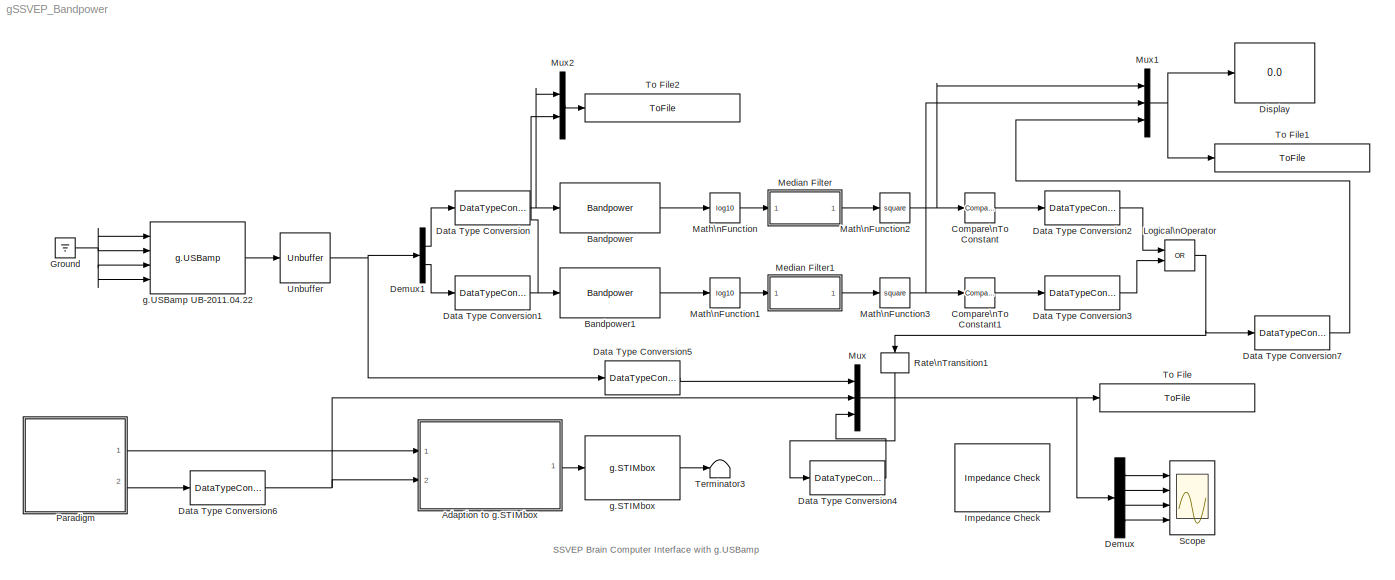
MODEL gSSVEP_Bandpower
KIND model
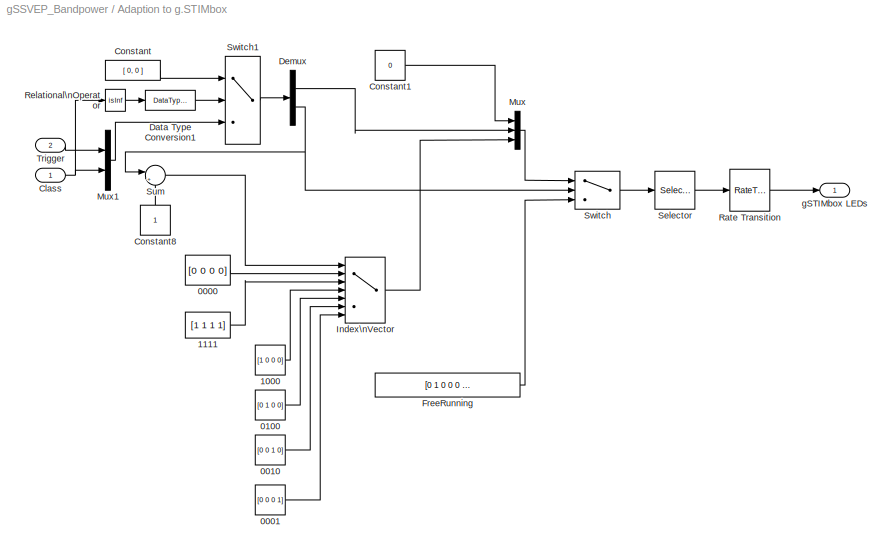
BLOCK [SubSystem] Adaption to g.STIMbox
  MinAlgLoopOccurrences = on
  Ports = [2, 1]
  RequestExecContextInheritance = off
  SID = 1
  Variant = off
BLOCK [Constant] Adaption to g.STIMbox/0000
  SID = 4
  SampleTime = 1/256
  Value = [0 0 0 0]
BLOCK [Constant] Adaption to g.STIMbox/0001
  SID = 5
  SampleTime = 1/256
  Value = [0 0 0 1]
BLOCK [Constant] Adaption to g.STIMbox/0010
  SID = 6
  SampleTime = 1/256
  Value = [0 0 1 0]
BLOCK [Constant] Adaption to g.STIMbox/0100
  SID = 7
  SampleTime = 1/256
  Value = [0 1 0 0]
BLOCK [Constant] Adaption to g.STIMbox/1000
  SID = 8
  SampleTime = 1/256
  Value = [1 0 0 0]
BLOCK [Constant] Adaption to g.STIMbox/1111
  SID = 9
  SampleTime = 1/256
  Value = [1 1 1 1]
BLOCK [Inport] Adaption to g.STIMbox/Class
  IconDisplay = Port number
  SID = 2
BLOCK [Constant] Adaption to g.STIMbox/Constant
  SID = 73
  Value = [ 0, 0 ]
BLOCK [Constant] Adaption to g.STIMbox/Constant1
  SID = 10
  SampleTime = 1/256
  Value = 0
BLOCK [Constant] Adaption to g.STIMbox/Constant8
  SID = 11
  SampleTime = 1/256
BLOCK [DataTypeConversion] Adaption to g.STIMbox/Data Type Conversion1
  RndMeth = Floor
  SID = 74
  SaturateOnIntegerOverflow = off
BLOCK [Demux] Adaption to g.STIMbox/Demux
  DisplayOption = bar
  Outputs = 2
  Ports = [1, 2]
  SID = 78
BLOCK [Constant] Adaption to g.STIMbox/FreeRunning
  SID = 12
  SampleTime = 1/256
  Value = [0 1 0 0 0 0]
BLOCK [MultiPortSwitch] Adaption to g.STIMbox/Index\nVector
  DataPortOrder = Zero-based contiguous
  InputSameDT = off
  Inputs = 6
  Ports = [7, 1]
  SID = 13
  SaturateOnIntegerOverflow = off
  zeroidx = on
BLOCK [Mux] Adaption to g.STIMbox/Mux
  DisplayOption = bar
  Inputs = 3
  Ports = [3, 1]
  SID = 14
BLOCK [Mux] Adaption to g.STIMbox/Mux1
  DisplayOption = bar
  Inputs = 2
  Ports = [2, 1]
  SID = 77
BLOCK [RateTransition] Adaption to g.STIMbox/Rate Transition
  SID = 15
BLOCK [RelationalOperator] Adaption to g.STIMbox/Relational\nOperator
  InputSameDT = off
  Operator = isInf
  OutDataTypeStr = boolean
  Ports = [1, 1]
  SID = 75
BLOCK [Selector] Adaption to g.STIMbox/Selector
  IndexOptions = Index vector (dialog)
  Indices = [ones(1,8) 2 3 2 4 2 5 2 6]
  InputPortWidth = 6
  OutputSizes = 1
  Ports = [1, 1]
  SID = 16
BLOCK [Sum] Adaption to g.STIMbox/Sum
  IconShape = round
  InputSameDT = off
  Inputs = |++
  OutDataTypeStr = Inherit: Inherit via internal rule
  Ports = [2, 1]
  SID = 17
  SaturateOnIntegerOverflow = off
BLOCK [Switch] Adaption to g.STIMbox/Switch
  InputSameDT = off
  SID = 18
  SaturateOnIntegerOverflow = off
BLOCK [Switch] Adaption to g.STIMbox/Switch1
  Criteria = u2 > Threshold
  InputSameDT = off
  SID = 76
  SaturateOnIntegerOverflow = off
BLOCK [Inport] Adaption to g.STIMbox/Trigger
  IconDisplay = Port number
  Port = 2
  SID = 3
BLOCK [Outport] Adaption to g.STIMbox/gSTIMbox LEDs
  IconDisplay = Port number
  SID = 19
BLOCK [Reference] Bandpower  REF=gRTanalyze/Bandpower
  LowerFreq = 8
  Order = 5
  Ports = [1, 1]
  SID = 90
  SourceBlock = gRTanalyze/Bandpower
  SourceType = Parameter Extraction: Bandpower
  UpperFreq = 10
  WindowLength = 128
BLOCK [Reference] Bandpower1  REF=gRTanalyze/Bandpower
  LowerFreq = 8
  Order = 5
  Ports = [1, 1]
  SID = 91
  SourceBlock = gRTanalyze/Bandpower
  SourceType = Parameter Extraction: Bandpower
  UpperFreq = 10
  WindowLength = 128
BLOCK [Reference] Compare\nTo Constant  REF=simulink/Logic and Bit\nOperations/Compare\nTo Constant
  OutDataTypeStr = boolean
  Ports = [1, 1]
  SID = 102
  SourceBlock = simulink/Logic and Bit\nOperations/Compare\nTo Constant
  SourceType = Compare To Constant
  ZeroCross = on
  const = 3
  relop = >=
BLOCK [Reference] Compare\nTo Constant1  REF=simulink/Logic and Bit\nOperations/Compare\nTo Constant
  OutDataTypeStr = boolean
  Ports = [1, 1]
  SID = 103
  SourceBlock = simulink/Logic and Bit\nOperations/Compare\nTo Constant
  SourceType = Compare To Constant
  ZeroCross = on
  const = 3
  relop = >=
BLOCK [DataTypeConversion] Data Type Conversion
  OutDataTypeStr = double
  RndMeth = Floor
  SID = 88
  SaturateOnIntegerOverflow = off
BLOCK [DataTypeConversion] Data Type Conversion1
  OutDataTypeStr = double
  RndMeth = Floor
  SID = 89
  SaturateOnIntegerOverflow = off
BLOCK [DataTypeConversion] Data Type Conversion2
  OutDataTypeStr = double
  RndMeth = Floor
  SID = 104
  SaturateOnIntegerOverflow = off
BLOCK [DataTypeConversion] Data Type Conversion3
  OutDataTypeStr = double
  RndMeth = Floor
  SID = 105
  SaturateOnIntegerOverflow = off
BLOCK [DataTypeConversion] Data Type Conversion4
  OutDataTypeStr = double
  RndMeth = Floor
  SID = 110
  SaturateOnIntegerOverflow = off
BLOCK [DataTypeConversion] Data Type Conversion5
  OutDataTypeStr = double
  RndMeth = Floor
  SID = 111
  SaturateOnIntegerOverflow = off
BLOCK [DataTypeConversion] Data Type Conversion6
  OutDataTypeStr = double
  RndMeth = Floor
  SID = 112
  SaturateOnIntegerOverflow = off
BLOCK [DataTypeConversion] Data Type Conversion7
  OutDataTypeStr = double
  RndMeth = Floor
  SID = 113
  SaturateOnIntegerOverflow = off
BLOCK [Demux] Demux
  DisplayOption = bar
  Ports = [1, 4]
  SID = 22
BLOCK [Demux] Demux1
  DisplayOption = bar
  Outputs = 2
  Ports = [1, 2]
  SID = 86
BLOCK [Display] Display
  Decimation = 1
  Ports = [1]
  SID = 23
BLOCK [Ground] Ground
  SID = 84
BLOCK [Reference] Impedance Check  REF=Tools/Impedance Check
  Ports = []
  SID = 26
  SourceBlock = Tools/Impedance Check
  SourceType = g.USBamp Impedance Check
BLOCK [Logic] Logical\nOperator
  AllPortsSameDT = off
  Operator = OR
  OutDataTypeStr = boolean
  Ports = [2, 1]
  SID = 106
BLOCK [Math] Math\nFunction
  Operator = log10
  Ports = [1, 1]
  SID = 98
BLOCK [Math] Math\nFunction1
  Operator = log10
  Ports = [1, 1]
  SID = 99
BLOCK [Math] Math\nFunction2
  Operator = square
  Ports = [1, 1]
  SID = 100
BLOCK [Math] Math\nFunction3
  Operator = square
  Ports = [1, 1]
  SID = 101
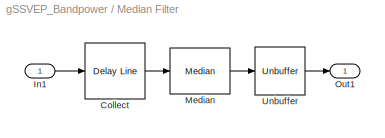
BLOCK [SubSystem] Median Filter
  Ports = [1, 1]
  RequestExecContextInheritance = off
  SID = 55
  Variant = off
BLOCK [Reference] Median Filter/Collect  REF=dspbuff3/Delay Line
  OutputFrames = on
  Ports = [1, 1]
  SID = 57
  SourceBlock = dspbuff3/Delay Line
  SourceType = Delay Line
  TreatMby1Signals = M channels (this choice will be removed - see release notes)
  UserData = DataTag0
  UserDataPersistent = on
  directfeed = on
  enable_output = off
  hold_output = off
  ic = 0
  siz = 50
BLOCK [Inport] Median Filter/In1
  IconDisplay = Port number
  SID = 56
BLOCK [Reference] Median Filter/Median  REF=dspstat3/Median
  LockScale = off
  Ports = [1, 1]
  SID = 58
  SourceBlock = dspstat3/Median
  SourceType = Median
  accumDataTypeStr = Inherit: Same as product output
  accumFracLength = 30
  accumLastDataTypeStr = Inherit: Same as product output
  accumMode = Same as product output
  accumWordLength = 32
  additionalParams = off
  allowOverrides = off
  dimension = 1
  directionMode = Specified dimension
  outputDataTypeStr = Inherit: Same as accumulator
  outputFracLength = 15
  outputLastDataTypeStr = Inherit: Same as accumulator
  outputMax = []
  outputMin = []
  outputMode = Same as accumulator
  outputWordLength = 16
  overflowMode = off
  prodOutputDataTypeStr = Inherit: Same as input
  prodOutputFracLength = 30
  prodOutputLastDataTypeStr = Inherit: Same as input
  prodOutputMode = Same as input
  prodOutputWordLength = 32
  roundingMode = Floor
  sortAlg = Quick sort
BLOCK [Outport] Median Filter/Out1
  IconDisplay = Port number
  SID = 60
BLOCK [Unbuffer] Median Filter/Unbuffer
  Ports = [1, 1]
  SID = 64
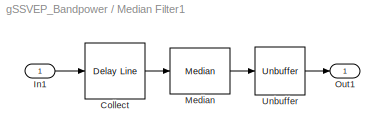
BLOCK [SubSystem] Median Filter1
  Ports = [1, 1]
  RequestExecContextInheritance = off
  SID = 114
  Variant = off
BLOCK [Reference] Median Filter1/Collect  REF=dspbuff3/Delay Line
  OutputFrames = on
  Ports = [1, 1]
  SID = 116
  SourceBlock = dspbuff3/Delay Line
  SourceType = Delay Line
  TreatMby1Signals = M channels (this choice will be removed - see release notes)
  UserData = DataTag1
  UserDataPersistent = on
  directfeed = on
  enable_output = off
  hold_output = off
  ic = 0
  siz = 50
BLOCK [Inport] Median Filter1/In1
  IconDisplay = Port number
  SID = 115
BLOCK [Reference] Median Filter1/Median  REF=dspstat3/Median
  LockScale = off
  Ports = [1, 1]
  SID = 117
  SourceBlock = dspstat3/Median
  SourceType = Median
  accumDataTypeStr = Inherit: Same as product output
  accumFracLength = 30
  accumLastDataTypeStr = Inherit: Same as product output
  accumMode = Same as product output
  accumWordLength = 32
  additionalParams = off
  allowOverrides = off
  dimension = 1
  directionMode = Specified dimension
  outputDataTypeStr = Inherit: Same as accumulator
  outputFracLength = 15
  outputLastDataTypeStr = Inherit: Same as accumulator
  outputMax = []
  outputMin = []
  outputMode = Same as accumulator
  outputWordLength = 16
  overflowMode = off
  prodOutputDataTypeStr = Inherit: Same as input
  prodOutputFracLength = 30
  prodOutputLastDataTypeStr = Inherit: Same as input
  prodOutputMode = Same as input
  prodOutputWordLength = 32
  roundingMode = Floor
  sortAlg = Quick sort
BLOCK [Outport] Median Filter1/Out1
  IconDisplay = Port number
  SID = 119
BLOCK [Unbuffer] Median Filter1/Unbuffer
  Ports = [1, 1]
  SID = 118
BLOCK [Mux] Mux
  DisplayOption = bar
  Inputs = 3
  Ports = [3, 1]
  SID = 34
BLOCK [Mux] Mux1
  DisplayOption = bar
  Inputs = 3
  Ports = [3, 1]
  SID = 108
BLOCK [Mux] Mux2
  DisplayOption = bar
  Inputs = 2
  Ports = [2, 1]
  SID = 122
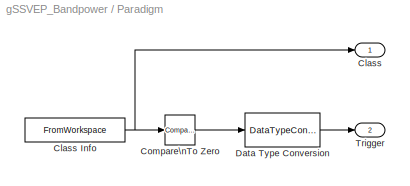
BLOCK [SubSystem] Paradigm
  MinAlgLoopOccurrences = on
  Ports = [0, 2]
  RequestExecContextInheritance = off
  SID = 35
  Variant = off
BLOCK [Outport] Paradigm/Class
  IconDisplay = Port number
  InitialOutput = 0
  SID = 39
BLOCK [FromWorkspace] Paradigm/Class Info
  Interpolate = off
  OutputAfterFinalValue = Holding final value
  SID = 36
  SampleTime = 1/256
  VariableName = paradigmDrivePattern
  ZeroCross = on
BLOCK [Reference] Paradigm/Compare\nTo Zero  REF=simulink/Logic and Bit\nOperations/Compare\nTo Zero
  OutDataTypeStr = uint8
  Ports = [1, 1]
  SID = 37
  SourceBlock = simulink/Logic and Bit\nOperations/Compare\nTo Zero
  SourceType = Compare To Zero
  ZeroCross = off
  relop = >
BLOCK [DataTypeConversion] Paradigm/Data Type Conversion
  RndMeth = Floor
  SID = 38
  SaturateOnIntegerOverflow = off
BLOCK [Outport] Paradigm/Trigger
  IconDisplay = Port number
  InitialOutput = 0
  Port = 2
  SID = 40
BLOCK [RateTransition] Rate\nTransition1
  SID = 41
BLOCK [Scope] Scope
  NumInputPorts = 4
  Ports = [4]
  SID = 42
  ScopeSpecificationString = Simulink.scopes.TimeScopeBlockCfg('CurrentConfiguration', extmgr.ConfigurationSet(extmgr.Configuration('Core','General UI',true),extmgr.Configuration('Core','Source UI',true),extmgr.Configuration('Sources','WiredSimulink',true,'DataLoggingSaveFormat','StructureWithTime','DataLoggingLimitDataPoints',true,'DataLoggingDecimation','1','DataLoggingDecimateData',true),extmgr.Configuration('Visuals','Tim...<+9113ch>
BLOCK [Terminator] Terminator3
  SID = 46
BLOCK [ToFile] To File
  Filename = training_session_2.mat
  MatrixName = y
  Ports = [1]
  SID = 47
BLOCK [ToFile] To File1
  Filename = SSVEP_bandpower.mat
  MatrixName = y
  Ports = [1]
  SID = 107
BLOCK [ToFile] To File2
  Filename = SSVEP_bandpower_rawdata.mat
  MatrixName = y
  Ports = [1]
  SID = 120
BLOCK [Unbuffer] Unbuffer
  Ports = [1, 1]
  SID = 85
  SampleBasedProcessing = Same as frame based
BLOCK [Reference] g.STIMbox  REF=gSTIMboxlib/g.STIMbox
  Ports = [1, 1]
  SID = 53
  SourceBlock = gSTIMboxlib/g.STIMbox
  SourceType = g.STIMbox
  bm = 0
  chfreqs = [1  1  1  1  1  1  1  1  9  1  9  1  9  1  9  1]
  chinv = [0  0  0  0  0  0  0  0  0  0  0  0  0  0]
  chmodes = [0  0  0  0  0  0  0  0  1  0  1  0  1  0  1  0]
  comport = 3
  fl = 1
  fs = 1
  ia = 1
  sr = 32
BLOCK [Reference] g.USBamp UB-2011.04.22  REF=gUSBamplib/g.USBamp
  Ports = [4, 1]
  SID = 109
  SourceBlock = gUSBamplib/g.USBamp
  SourceType = g.USBamp
  cfg = currentCFG_gSSVEP_gUSBamp_8ch_UB-2011.04.22.cfg
  snr = UB-2011.04.22
ANNOTATION (root): SSVEP Brain Computer Interface with g.USBamp
LINE Adaption to g.STIMbox/0000:1 -> Adaption to g.STIMbox/Index\nVector:2
LINE Adaption to g.STIMbox/0001:1 -> Adaption to g.STIMbox/Index\nVector:7
LINE Adaption to g.STIMbox/0010:1 -> Adaption to g.STIMbox/Index\nVector:6
LINE Adaption to g.STIMbox/0100:1 -> Adaption to g.STIMbox/Index\nVector:5
LINE Adaption to g.STIMbox/1000:1 -> Adaption to g.STIMbox/Index\nVector:4
LINE Adaption to g.STIMbox/1111:1 -> Adaption to g.STIMbox/Index\nVector:3
NET Adaption to g.STIMbox/Class:1 -> Adaption to g.STIMbox/Mux1:2, Adaption to g.STIMbox/Relational\nOperator:1
LINE Adaption to g.STIMbox/Constant1:1 -> Adaption to g.STIMbox/Mux:1
LINE Adaption to g.STIMbox/Constant8:1 -> Adaption to g.STIMbox/Sum:2
LINE Adaption to g.STIMbox/Constant:1 -> Adaption to g.STIMbox/Switch1:1
LINE Adaption to g.STIMbox/Data Type Conversion1:1 -> Adaption to g.STIMbox/Switch1:2
LINE Adaption to g.STIMbox/Demux:1 -> Adaption to g.STIMbox/Mux:2
NET Adaption to g.STIMbox/Demux:2 -> Adaption to g.STIMbox/Sum:1, Adaption to g.STIMbox/Switch:2
LINE Adaption to g.STIMbox/FreeRunning:1 -> Adaption to g.STIMbox/Switch:3
LINE Adaption to g.STIMbox/Index\nVector:1 -> Adaption to g.STIMbox/Mux:3
LINE Adaption to g.STIMbox/Mux1:1 -> Adaption to g.STIMbox/Switch1:3
LINE Adaption to g.STIMbox/Mux:1 -> Adaption to g.STIMbox/Switch:1
LINE Adaption to g.STIMbox/Rate Transition:1 -> Adaption to g.STIMbox/gSTIMbox LEDs:1
LINE Adaption to g.STIMbox/Relational\nOperator:1 -> Adaption to g.STIMbox/Data Type Conversion1:1
LINE Adaption to g.STIMbox/Selector:1 -> Adaption to g.STIMbox/Rate Transition:1
LINE Adaption to g.STIMbox/Sum:1 -> Adaption to g.STIMbox/Index\nVector:1
LINE Adaption to g.STIMbox/Switch1:1 -> Adaption to g.STIMbox/Demux:1
LINE Adaption to g.STIMbox/Switch:1 -> Adaption to g.STIMbox/Selector:1
LINE Adaption to g.STIMbox/Trigger:1 -> Adaption to g.STIMbox/Mux1:1
LINE Adaption to g.STIMbox:1 -> g.STIMbox:1
LINE Bandpower1:1 -> Math\nFunction1:1
LINE Bandpower:1 -> Math\nFunction:1
LINE Compare\nTo Constant1:1 -> Data Type Conversion3:1
LINE Compare\nTo Constant:1 -> Data Type Conversion2:1
NET Data Type Conversion1:1 -> Bandpower1:1, Mux2:2
LINE Data Type Conversion2:1 -> Logical\nOperator:1
LINE Data Type Conversion3:1 -> Logical\nOperator:2
LINE Data Type Conversion4:1 -> Mux:3
LINE Data Type Conversion5:1 -> Mux:1
NET Data Type Conversion6:1 -> Adaption to g.STIMbox:2, Mux:2
LINE Data Type Conversion7:1 -> Mux1:3
NET Data Type Conversion:1 -> Bandpower:1, Mux2:1
LINE Demux1:1 -> Data Type Conversion:1
LINE Demux1:2 -> Data Type Conversion1:1
LINE Demux:1 -> Scope:1
LINE Demux:2 -> Scope:2
LINE Demux:3 -> Scope:3
LINE Demux:4 -> Scope:4
NET Ground:1 -> g.USBamp UB-2011.04.22:1, g.USBamp UB-2011.04.22:2, g.USBamp UB-2011.04.22:3, g.USBamp UB-2011.04.22:4
NET Logical\nOperator:1 -> Data Type Conversion7:1, Rate\nTransition1:1
LINE Math\nFunction1:1 -> Median Filter1:1
NET Math\nFunction2:1 -> Compare\nTo Constant:1, Mux1:1
NET Math\nFunction3:1 -> Compare\nTo Constant1:1, Mux1:2
LINE Math\nFunction:1 -> Median Filter:1
LINE Median Filter/Collect:1 -> Median Filter/Median:1
LINE Median Filter/In1:1 -> Median Filter/Collect:1
LINE Median Filter/Median:1 -> Median Filter/Unbuffer:1
LINE Median Filter/Unbuffer:1 -> Median Filter/Out1:1
LINE Median Filter1/Collect:1 -> Median Filter1/Median:1
LINE Median Filter1/In1:1 -> Median Filter1/Collect:1
LINE Median Filter1/Median:1 -> Median Filter1/Unbuffer:1
LINE Median Filter1/Unbuffer:1 -> Median Filter1/Out1:1
LINE Median Filter1:1 -> Math\nFunction3:1
LINE Median Filter:1 -> Math\nFunction2:1
NET Mux1:1 -> Display:1, To File1:1
LINE Mux2:1 -> To File2:1
NET Mux:1 -> Demux:1, To File:1
NET Paradigm/Class Info:1 -> Paradigm/Class:1, Paradigm/Compare\nTo Zero:1
LINE Paradigm/Compare\nTo Zero:1 -> Paradigm/Data Type Conversion:1
LINE Paradigm/Data Type Conversion:1 -> Paradigm/Trigger:1
LINE Paradigm:1 -> Adaption to g.STIMbox:1
LINE Paradigm:2 -> Data Type Conversion6:1
LINE Rate\nTransition1:1 -> Data Type Conversion4:1
NET Unbuffer:1 -> Data Type Conversion5:1, Demux1:1
LINE g.STIMbox:1 -> Terminator3:1
LINE g.USBamp UB-2011.04.22:1 -> Unbuffer:1
note: NET lines group one-source signal fan-out (src -> all destinations, sorted); 1:1 wires keep LINE
